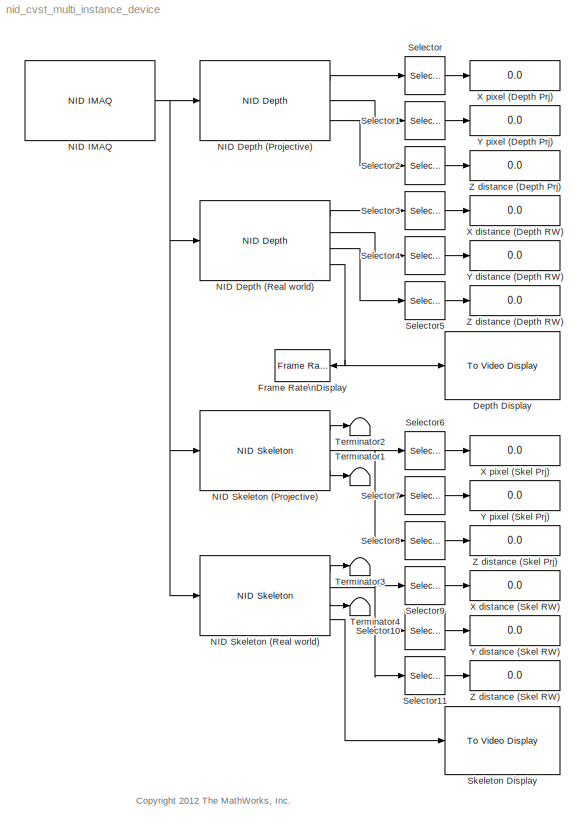
MODEL nid_cvst_multi_instance_device
KIND model
BLOCK [Reference] Depth Display  REF=vipsnks/To Video Display
  OutputDevice = On-screen video monitor
  Ports = [1]
  SID = 133
  SourceBlock = vipsnks/To Video Display
  SourceProductBaseCode = VP
  SourceProductName = Computer Vision Toolbox
  SourceType = To Video Display
  dataOrg = Column-major
  fullScreen = off
  imagePorts = One multidimensional signal
  inputType = Obsolete
  isWindowOpen = on
  openAtMdlStart = on
  saveWindowSize = on
  videoWindowHeight = 317
  videoWindowWidth = 440
  videoWindowX = 874
  videoWindowY = 191
BLOCK [Reference] Frame Rate\nDisplay  REF=vipsnks/Frame Rate\nDisplay
  Ports = [1]
  SID = 157
  SourceBlock = vipsnks/Frame Rate\nDisplay
  SourceProductBaseCode = VP
  SourceProductName = Computer Vision Toolbox
  SourceType = Frame Rate Display
  UpdateRate = 10
BLOCK [Reference] NID Depth (Projective)  REF=nid_lib/NID Depth
  Ports = [1, 3]
  SID = 129
  SourceBlock = nid_lib/NID Depth
  SourceType = NID Depth
  conv_XYZ_RW = off
  depthOutput = X/Y/Z
  viewer = off
BLOCK [Reference] NID Depth (Real world)  REF=nid_lib/NID Depth
  Ports = [1, 4]
  SID = 139
  SourceBlock = nid_lib/NID Depth
  SourceType = NID Depth
  conv_XYZ_RW = on
  depthOutput = X/Y/Z
  viewer = on
BLOCK [Reference] NID IMAQ  REF=nid_lib/NID IMAQ
  Ports = [0, 1]
  SID = 130
  SourceBlock = nid_lib/NID IMAQ
  SourceType = NID IMAQ
  angle = 0
  angle_read = off
  imaq_depth = on
  imaq_image = off
  imaq_ir = off
  imaq_motion = off
  imaq_sample_time = 1/30
  imaq_skeleton = on
  mirror_image = off
  near_mode = off
  needPsiPose = off
  res_fps = VGA (640x480): 30 FPS
  view_point = off
BLOCK [Reference] NID Skeleton (Projective)  REF=nid_lib/NID Skeleton
  Ports = [1, 3]
  SID = 142
  SourceBlock = nid_lib/NID Skeleton
  SourceType = NID Skeleton
  conv_XYZ_RW = off
  num_of_skeleton_tracking = 2
  viewer = off
BLOCK [Reference] NID Skeleton (Real world)  REF=nid_lib/NID Skeleton
  Ports = [1, 4]
  SID = 175
  SourceBlock = nid_lib/NID Skeleton
  SourceType = NID Skeleton
  conv_XYZ_RW = on
  num_of_skeleton_tracking = 2
  viewer = on
BLOCK [Selector] Selector
  IndexOptions = Index vector (dialog),Index vector (dialog)
  Indices = 480/2,640/2
  NumberOfDimensions = 2
  OutputSizes = 1,1
  Ports = [1, 1]
  SID = 151
BLOCK [Selector] Selector1
  IndexOptions = Index vector (dialog),Index vector (dialog)
  Indices = 480/2,640/2
  NumberOfDimensions = 2
  OutputSizes = 1,1
  Ports = [1, 1]
  SID = 153
BLOCK [Selector] Selector10
  IndexOptions = Index vector (dialog),Index vector (dialog),Index vector (dialog)
  Indices = 1,1,2
  NumberOfDimensions = 3
  OutputSizes = 1,1,1
  Ports = [1, 1]
  SID = 178
BLOCK [Selector] Selector11
  IndexOptions = Index vector (dialog),Index vector (dialog),Index vector (dialog)
  Indices = 1,1,3
  NumberOfDimensions = 3
  OutputSizes = 1,1,1
  Ports = [1, 1]
  SID = 179
BLOCK [Selector] Selector2
  IndexOptions = Index vector (dialog),Index vector (dialog)
  Indices = 480/2,640/2
  NumberOfDimensions = 2
  OutputSizes = 1,1
  Ports = [1, 1]
  SID = 155
BLOCK [Selector] Selector3
  IndexOptions = Index vector (dialog),Index vector (dialog)
  Indices = 480/2,640/2
  NumberOfDimensions = 2
  OutputSizes = 1,1
  Ports = [1, 1]
  SID = 159
BLOCK [Selector] Selector4
  IndexOptions = Index vector (dialog),Index vector (dialog)
  Indices = 480/2,640/2
  NumberOfDimensions = 2
  OutputSizes = 1,1
  Ports = [1, 1]
  SID = 160
BLOCK [Selector] Selector5
  IndexOptions = Index vector (dialog),Index vector (dialog)
  Indices = 480/2,640/2
  NumberOfDimensions = 2
  OutputSizes = 1,1
  Ports = [1, 1]
  SID = 161
BLOCK [Selector] Selector6
  IndexOptions = Index vector (dialog),Index vector (dialog),Index vector (dialog)
  Indices = 1,1,1
  NumberOfDimensions = 3
  OutputSizes = 1,1,1
  Ports = [1, 1]
  SID = 168
BLOCK [Selector] Selector7
  IndexOptions = Index vector (dialog),Index vector (dialog),Index vector (dialog)
  Indices = 1,1,2
  NumberOfDimensions = 3
  OutputSizes = 1,1,1
  Ports = [1, 1]
  SID = 171
BLOCK [Selector] Selector8
  IndexOptions = Index vector (dialog),Index vector (dialog),Index vector (dialog)
  Indices = 1,1,3
  NumberOfDimensions = 3
  OutputSizes = 1,1,1
  Ports = [1, 1]
  SID = 172
BLOCK [Selector] Selector9
  IndexOptions = Index vector (dialog),Index vector (dialog),Index vector (dialog)
  Indices = 1,1,1
  NumberOfDimensions = 3
  OutputSizes = 1,1,1
  Ports = [1, 1]
  SID = 177
BLOCK [Reference] Skeleton Display  REF=vipsnks/To Video Display
  OutputDevice = On-screen video monitor
  Ports = [1]
  SID = 143
  SourceBlock = vipsnks/To Video Display
  SourceProductBaseCode = VP
  SourceProductName = Computer Vision Toolbox
  SourceType = To Video Display
  dataOrg = Column-major
  fullScreen = off
  imagePorts = One multidimensional signal
  inputType = Obsolete
  isWindowOpen = on
  openAtMdlStart = on
  saveWindowSize = on
  videoWindowHeight = 317
  videoWindowWidth = 440
  videoWindowX = 873
  videoWindowY = 561
BLOCK [Terminator] Terminator1
  SID = 170
BLOCK [Terminator] Terminator2
  SID = 144
BLOCK [Terminator] Terminator3
  SID = 176
BLOCK [Terminator] Terminator4
  SID = 183
BLOCK [Display] X distance (Depth RW)
  Decimation = 1
  Ports = [1]
  SID = 158
BLOCK [Display] X distance (Skel RW)
  Decimation = 1
  Ports = [1]
  SID = 180
BLOCK [Display] X pixel (Depth Prj)
  Decimation = 1
  Ports = [1]
  SID = 152
BLOCK [Display] X pixel (Skel Prj)
  Decimation = 1
  Ports = [1]
  SID = 169
BLOCK [Display] Y distance (Depth RW)
  Decimation = 1
  Ports = [1]
  SID = 162
BLOCK [Display] Y distance (Skel RW)
  Decimation = 1
  Ports = [1]
  SID = 181
BLOCK [Display] Y pixel (Depth Prj)
  Decimation = 1
  Ports = [1]
  SID = 154
BLOCK [Display] Y pixel (Skel Prj)
  Decimation = 1
  Ports = [1]
  SID = 173
BLOCK [Display] Z distance (Depth Prj)
  Decimation = 1
  Ports = [1]
  SID = 156
BLOCK [Display] Z distance (Depth RW)
  Decimation = 1
  Ports = [1]
  SID = 163
BLOCK [Display] Z distance (Skel Prj)
  Decimation = 1
  Ports = [1]
  SID = 174
BLOCK [Display] Z distance (Skel RW)
  Decimation = 1
  Ports = [1]
  SID = 182
ANNOTATION (root): <copyright redacted>
LINE NID Depth (Projective):1 -> Selector:1
LINE NID Depth (Projective):2 -> Selector1:1
LINE NID Depth (Projective):3 -> Selector2:1
LINE NID Depth (Real world):1 -> Selector3:1
LINE NID Depth (Real world):2 -> Selector4:1
LINE NID Depth (Real world):3 -> Selector5:1
NET NID Depth (Real world):4 -> Depth Display:1, Frame Rate\nDisplay:1
NET NID IMAQ:1 -> NID Depth (Projective):1, NID Depth (Real world):1, NID Skeleton (Projective):1, NID Skeleton (Real world):1
LINE NID Skeleton (Projective):1 -> Terminator2:1
NET NID Skeleton (Projective):2 -> Selector6:1, Selector7:1, Selector8:1
LINE NID Skeleton (Projective):3 -> Terminator1:1
LINE NID Skeleton (Real world):1 -> Terminator3:1
NET NID Skeleton (Real world):2 -> Selector10:1, Selector11:1, Selector9:1
LINE NID Skeleton (Real world):3 -> Terminator4:1
LINE NID Skeleton (Real world):4 -> Skeleton Display:1
LINE Selector10:1 -> Y distance (Skel RW):1
LINE Selector11:1 -> Z distance (Skel RW):1
LINE Selector1:1 -> Y pixel (Depth Prj):1
LINE Selector2:1 -> Z distance (Depth Prj):1
LINE Selector3:1 -> X distance (Depth RW):1
LINE Selector4:1 -> Y distance (Depth RW):1
LINE Selector5:1 -> Z distance (Depth RW):1
LINE Selector6:1 -> X pixel (Skel Prj):1
LINE Selector7:1 -> Y pixel (Skel Prj):1
LINE Selector8:1 -> Z distance (Skel Prj):1
LINE Selector9:1 -> X distance (Skel RW):1
LINE Selector:1 -> X pixel (Depth Prj):1
note: NET lines group one-source signal fan-out (src -> all destinations, sorted); 1:1 wires keep LINE
